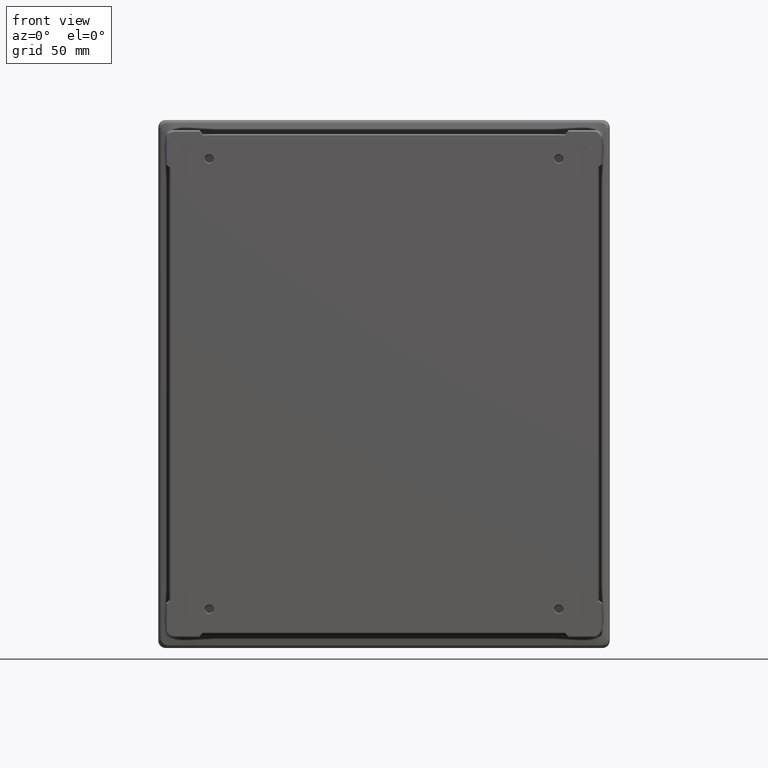
[diagram: clean part render]
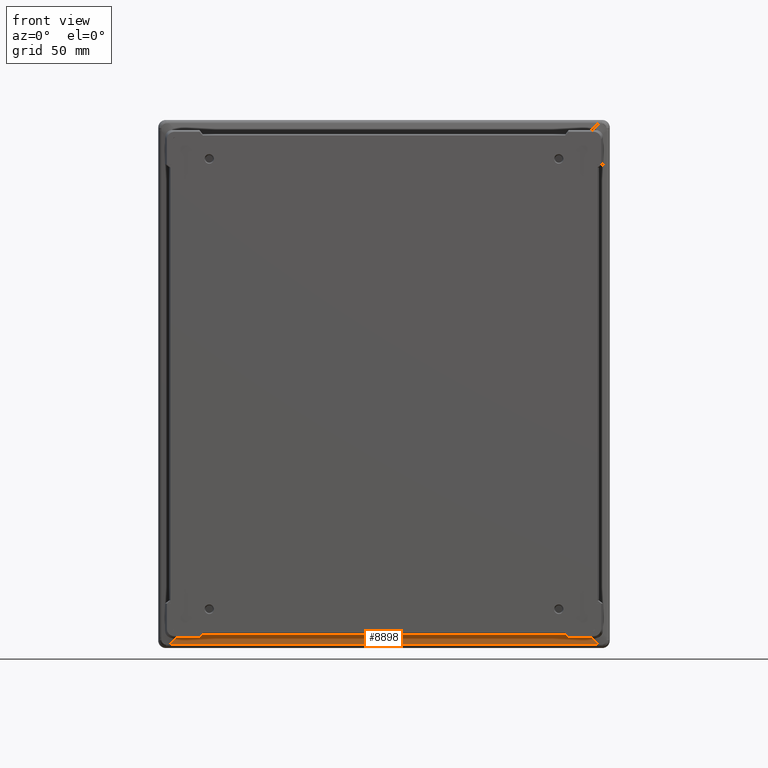
[diagram: same view with one face highlighted and labeled with its STEP entity id]
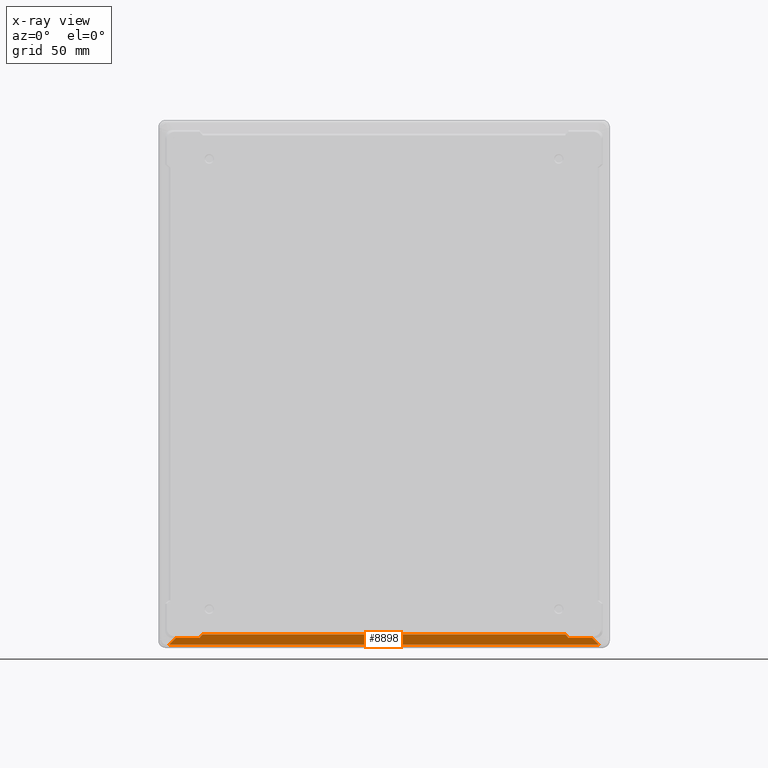
[diagram: x-ray of the same camera — body ghosted, the highlighted face saturated]
A machine part, front view. The second image highlights one B-rep face of the part: STEP entity #8898.
The next image is the same camera in x-ray: the body ghosted, the highlighted face saturated — about 0% of this face is hidden behind the body in this view.
In plain terms, the highlighted planar face has unit normal (0, -0.9781, -0.2079).
Its self-contained STEP definition (entity closure, byte-faithful):
#50 = LINE ( 'NONE', #14342, #16317 ) ;
#367 = ORIENTED_EDGE ( 'NONE', *, *, #8368, .T. ) ;
#1339 = CARTESIAN_POINT ( 'NONE',  ( -131.8963034739871600, -16.00718998141753600, -181.9410166084483100 ) ) ;
#1346 = CARTESIAN_POINT ( 'NONE',  ( -134.1097862871035600, -15.44231971034376500, -184.5985222936912200 ) ) ;
#1440 = DIRECTION ( 'NONE',  ( -0.6992527780868755800, -0.1486307662483552500, 0.6992527780868756900 ) ) ;
#1484 = CARTESIAN_POINT ( 'NONE',  ( 130.1332208427292300, -23.48428943663999400, -146.7640293798433500 ) ) ;
#1769 = EDGE_CURVE ( 'NONE', #1907, #8863, #4020, .T. ) ;
#1907 = VERTEX_POINT ( 'NONE', #9898 ) ;
#1919 = LINE ( 'NONE', #1920, #16323 ) ;
#1920 = CARTESIAN_POINT ( 'NONE',  ( -53371.08485281269500, 13492.19878431387000, -63733.05356831545900 ) ) ;
#2137 = FACE_OUTER_BOUND ( 'NONE', #5362, .T. ) ;
#2310 = PLANE ( 'NONE',  #14408 ) ;
#2409 = CARTESIAN_POINT ( 'NONE',  ( -156.1639115711600100, -14.40609603904656100, -189.4735713778304400 ) ) ;
#2552 = DIRECTION ( 'NONE',  ( 1.000000000000000000, -0.0000000000000000000, -0.0000000000000000000 ) ) ;
#2602 = ORIENTED_EDGE ( 'NONE', *, *, #15898, .F. ) ;
#2708 = ORIENTED_EDGE ( 'NONE', *, *, #16033, .T. ) ;
#2739 = DIRECTION ( 'NONE',  ( 1.000000000000000000, -0.0000000000000000000, -0.0000000000000000000 ) ) ;
#2780 = CARTESIAN_POINT ( 'NONE',  ( -160.7684158913757200, -13.42737843254676400, -194.0780756980461500 ) ) ;
#2831 = EDGE_CURVE ( 'NONE', #8863, #16075, #12716, .T. ) ;
#2914 = CARTESIAN_POINT ( 'NONE',  ( 156.1639115711599600, -14.40609603904655100, -189.4735713778305000 ) ) ;
#2987 = ORIENTED_EDGE ( 'NONE', *, *, #7455, .T. ) ;
#3021 = DIRECTION ( 'NONE',  ( 0.6338166285787350000, 0.1608162295870528300, -0.7565808758080593300 ) ) ;
#3190 = DIRECTION ( 'NONE',  ( 0.6338166285789083000, -0.1608162295870233200, 0.7565808758079204400 ) ) ;
#3524 = DIRECTION ( 'NONE',  ( 0.0000000000000000000, 0.2079116908177565700, -0.9781476007338061300 ) ) ;
#3636 = CARTESIAN_POINT ( 'NONE',  ( -163.5841030304689800, -14.00000000000000200, -191.3841030304688500 ) ) ;
#4020 = LINE ( 'NONE', #2780, #4419 ) ;
#4379 = EDGE_CURVE ( 'NONE', #9132, #1907, #10872, .T. ) ;
#4400 = ORIENTED_EDGE ( 'NONE', *, *, #1769, .T. ) ;
#4419 = VECTOR ( 'NONE', #15663, 1000.000000000000100 ) ;
#4459 = CARTESIAN_POINT ( 'NONE',  ( 134.1097862871036200, -15.44231971034378100, -184.5985222936912200 ) ) ;
#4532 = VERTEX_POINT ( 'NONE', #6558 ) ;
#5122 = VECTOR ( 'NONE', #6647, 1000.000000000000100 ) ;
#5211 = CARTESIAN_POINT ( 'NONE',  ( 0.7980664042125662500, -47.43012588868946000, -34.10772621088306500 ) ) ;
#5362 = EDGE_LOOP ( 'NONE', ( #2602, #6728, #2987, #11599, #4400, #15621, #367, #2708, #11011, #9564 ) ) ;
#5672 = EDGE_CURVE ( 'NONE', #4532, #11949, #7791, .T. ) ;
#5740 = LINE ( 'NONE', #16352, #9961 ) ;
#5835 = CARTESIAN_POINT ( 'NONE',  ( -134.1079484164088700, -15.44603651085789600, -184.5810361220815700 ) ) ;
#6558 = CARTESIAN_POINT ( 'NONE',  ( 131.8963034739882400, -16.00718998141753600, -181.9410166084483100 ) ) ;
#6647 = DIRECTION ( 'NONE',  ( -0.1022684195941458600, -0.2068215765179413100, 0.9730190161761223000 ) ) ;
#6728 = ORIENTED_EDGE ( 'NONE', *, *, #9370, .F. ) ;
#7258 = DIRECTION ( 'NONE',  ( -0.1022684195941458600, 0.2068215765179413100, -0.9730190161761223000 ) ) ;
#7455 = EDGE_CURVE ( 'NONE', #12216, #9132, #5740, .T. ) ;
#7613 = VECTOR ( 'NONE', #8951, 1000.000000000000000 ) ;
#7791 = LINE ( 'NONE', #14561, #16247 ) ;
#7882 = CARTESIAN_POINT ( 'NONE',  ( 134.1079484164088700, -15.44603651085793700, -184.5810361220813700 ) ) ;
#7909 = CARTESIAN_POINT ( 'NONE',  ( 164.0729938033534300, -15.44231971034376700, -184.5985222936912200 ) ) ;
#8368 = EDGE_CURVE ( 'NONE', #16075, #8370, #9934, .T. ) ;
#8370 = VERTEX_POINT ( 'NONE', #9131 ) ;
#8863 = VERTEX_POINT ( 'NONE', #2409 ) ;
#8898 = ADVANCED_FACE ( 'NONE', ( #2137 ), #2310, .T. ) ;
#8951 = DIRECTION ( 'NONE',  ( -1.000000000000000000, 0.0000000000000000000, 0.0000000000000000000 ) ) ;
#9131 = CARTESIAN_POINT ( 'NONE',  ( 151.2888624870208200, -15.44231971034376700, -184.5985222936912200 ) ) ;
#9132 = VERTEX_POINT ( 'NONE', #1346 ) ;
#9370 = EDGE_CURVE ( 'NONE', #12216, #11383, #1919, .T. ) ;
#9564 = ORIENTED_EDGE ( 'NONE', *, *, #5672, .F. ) ;
#9769 = LINE ( 'NONE', #1484, #5122 ) ;
#9898 = CARTESIAN_POINT ( 'NONE',  ( -151.2888624870207400, -15.44231971034376700, -184.5985222936912200 ) ) ;
#9934 = LINE ( 'NONE', #5211, #15139 ) ;
#9961 = VECTOR ( 'NONE', #7258, 1000.000000000000100 ) ;
#10262 = CARTESIAN_POINT ( 'NONE',  ( -163.5841030304689800, -14.40609603904656100, -189.4735713778304400 ) ) ;
#10872 = LINE ( 'NONE', #14079, #7613 ) ;
#10929 = VECTOR ( 'NONE', #2552, 1000.000000000000000 ) ;
#11011 = ORIENTED_EDGE ( 'NONE', *, *, #13714, .T. ) ;
#11383 = VERTEX_POINT ( 'NONE', #1339 ) ;
#11599 = ORIENTED_EDGE ( 'NONE', *, *, #4379, .T. ) ;
#11949 = VERTEX_POINT ( 'NONE', #7882 ) ;
#12216 = VERTEX_POINT ( 'NONE', #5835 ) ;
#12524 = VECTOR ( 'NONE', #13263, 1000.000000000000000 ) ;
#12716 = LINE ( 'NONE', #10262, #10929 ) ;
#13263 = DIRECTION ( 'NONE',  ( -1.000000000000000000, 0.0000000000000000000, 0.0000000000000000000 ) ) ;
#13714 = EDGE_CURVE ( 'NONE', #15130, #11949, #9769, .T. ) ;
#14079 = CARTESIAN_POINT ( 'NONE',  ( 164.0729938033534300, -15.44231971034376700, -184.5985222936912200 ) ) ;
#14342 = CARTESIAN_POINT ( 'NONE',  ( -157.0000000000000300, -16.00718998141753200, -181.9410166084483100 ) ) ;
#14408 = AXIS2_PLACEMENT_3D ( 'NONE', #3636, #16245, #3524 ) ;
#14561 = CARTESIAN_POINT ( 'NONE',  ( 53371.08485280790800, 13492.19878431876000, -63733.05356833880100 ) ) ;
#15130 = VERTEX_POINT ( 'NONE', #4459 ) ;
#15139 = VECTOR ( 'NONE', #1440, 1000.000000000000100 ) ;
#15621 = ORIENTED_EDGE ( 'NONE', *, *, #2831, .T. ) ;
#15663 = DIRECTION ( 'NONE',  ( -0.6992527780868755800, 0.1486307662483552500, -0.6992527780868756900 ) ) ;
#15898 = EDGE_CURVE ( 'NONE', #11383, #4532, #50, .T. ) ;
#16033 = EDGE_CURVE ( 'NONE', #8370, #15130, #16335, .T. ) ;
#16075 = VERTEX_POINT ( 'NONE', #2914 ) ;
#16245 = DIRECTION ( 'NONE',  ( 0.0000000000000000000, -0.9781476007338062400, -0.2079116908177565900 ) ) ;
#16247 = VECTOR ( 'NONE', #3021, 1000.000000000000200 ) ;
#16317 = VECTOR ( 'NONE', #2739, 1000.000000000000000 ) ;
#16323 = VECTOR ( 'NONE', #3190, 1000.000000000000100 ) ;
#16335 = LINE ( 'NONE', #7909, #12524 ) ;
#16352 = CARTESIAN_POINT ( 'NONE',  ( -130.1332208427292300, -23.48428943663999400, -146.7640293798433500 ) ) ;